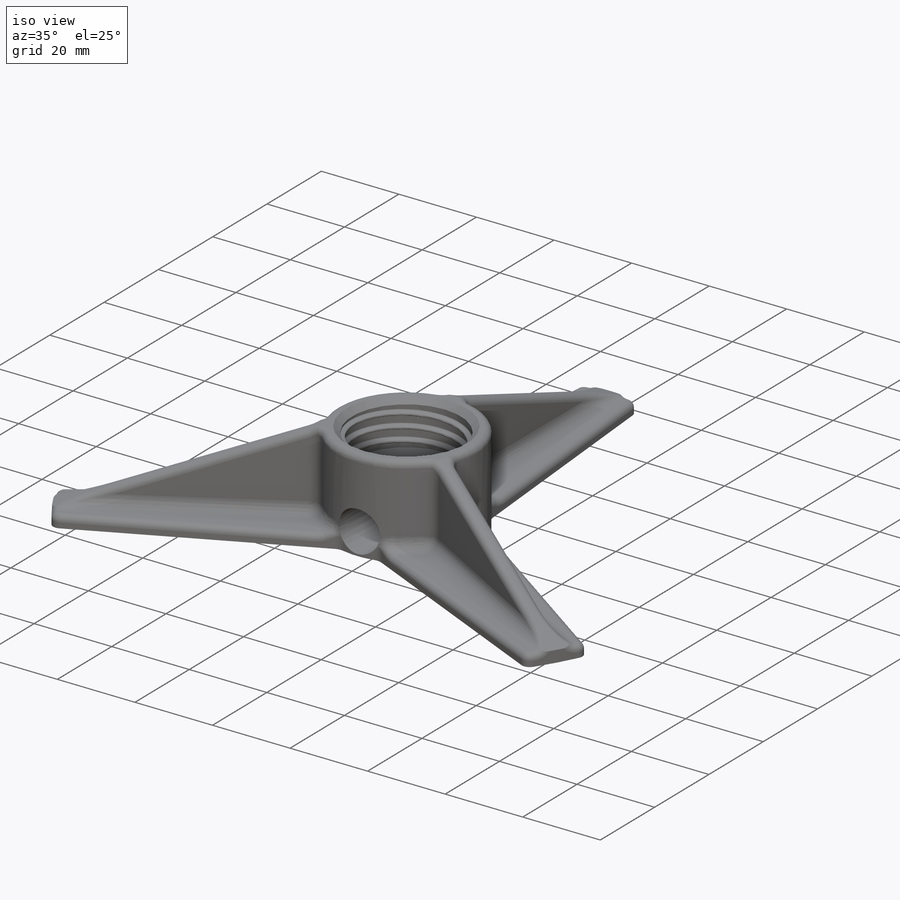
[diagram: iso view]
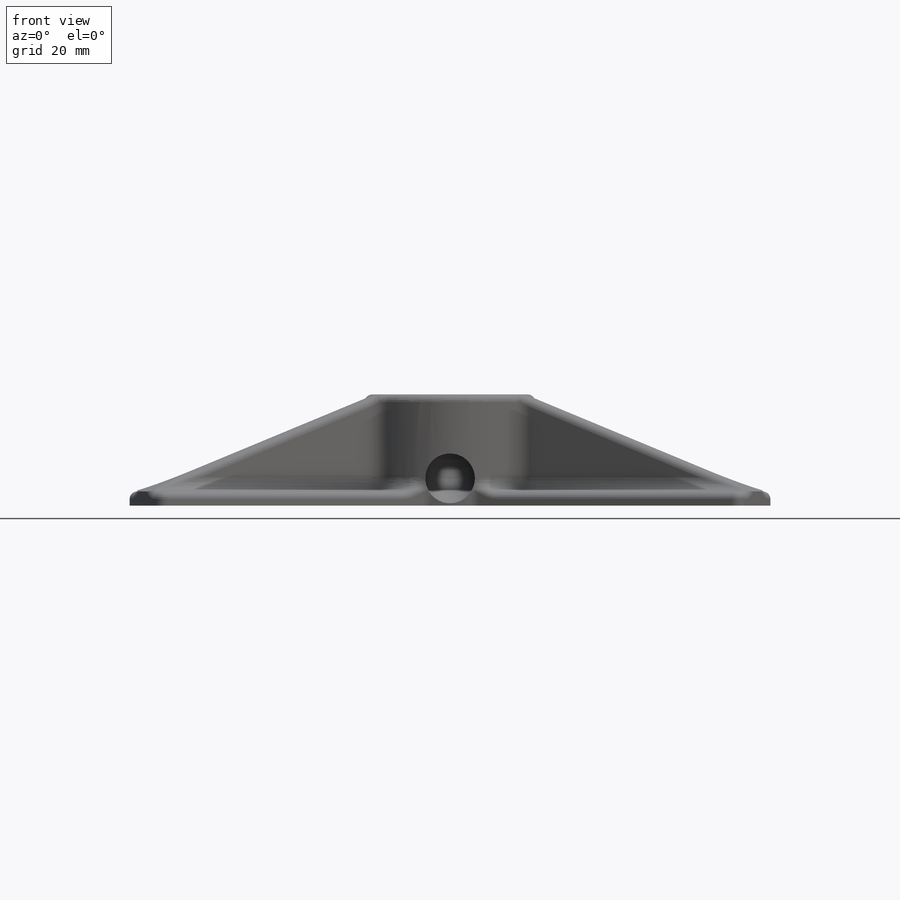
[diagram: front view]
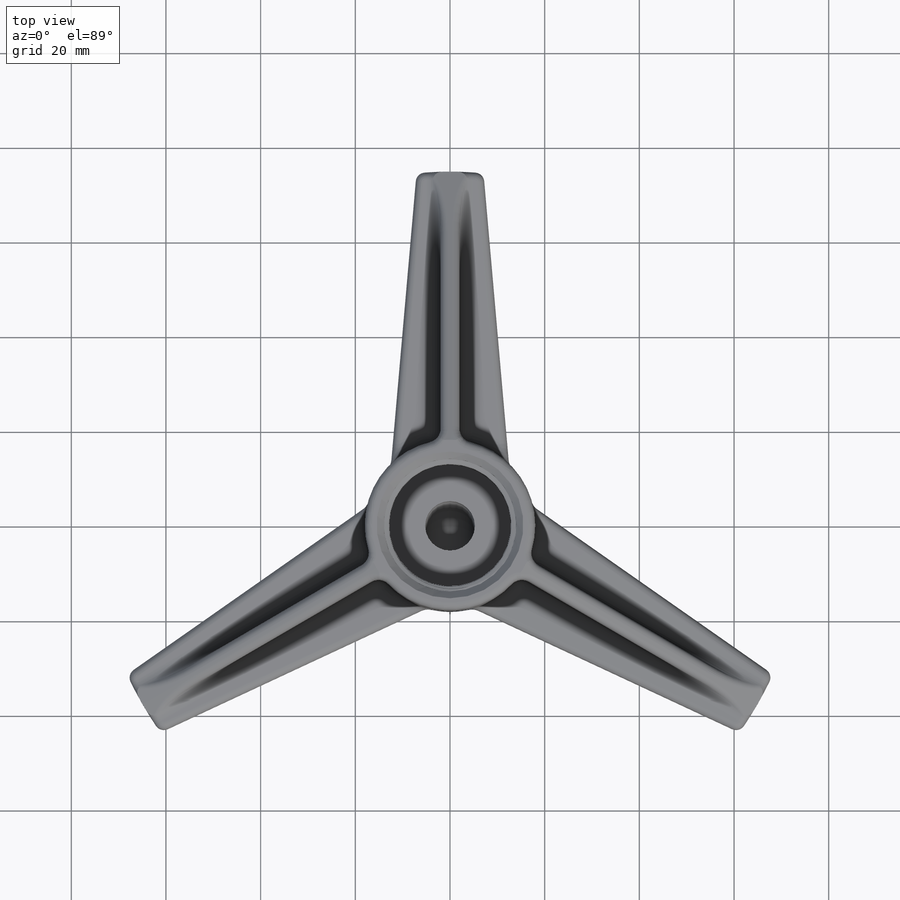
[diagram: top view]
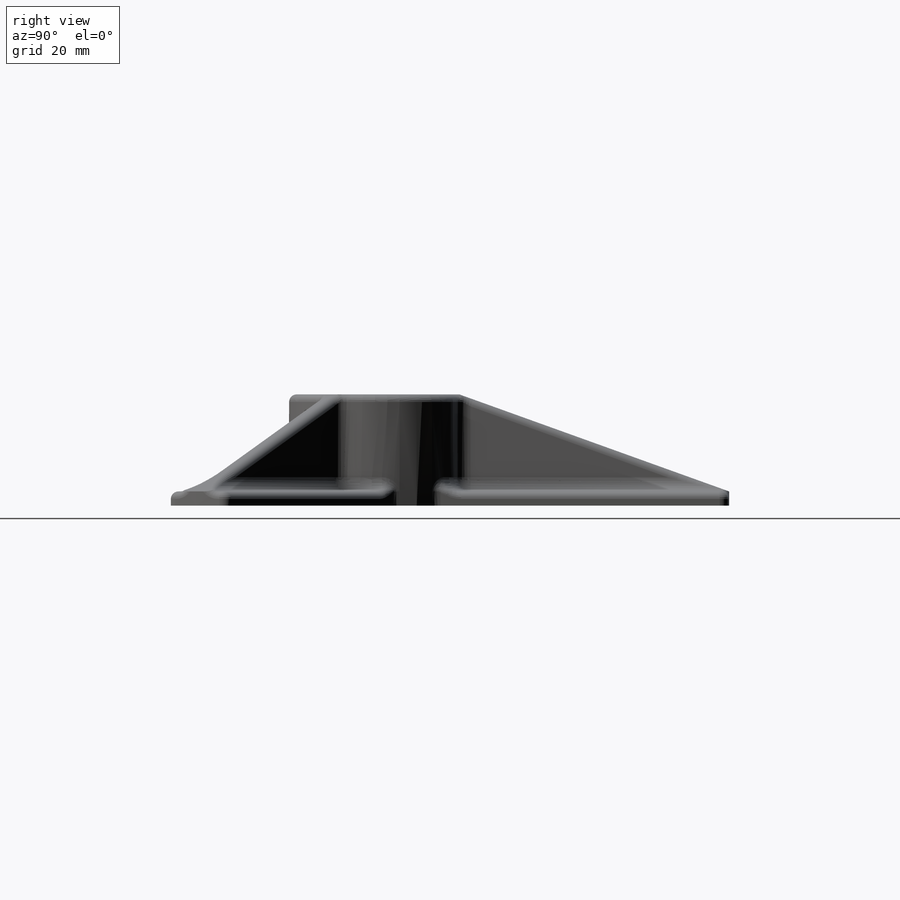
[diagram: right view]
SOLIDWORKS PART (.sldprt)
format: sldprt  version: not decoded by parser v0  size: 1,077,248 bytes
history: native  units: mm
features: sketch x11, fillet x6, plane x3, cut_extrude x3, sweep x2, cut_revolve x2, material x1, revolve x1, helix x1, pattern_circular x1 (+8 scaffold rows collapsed)
feature tree (39):
  scaffold x8  (default folders/planes/origin — collapsed)
  material  "Materiál <není určen>"
  plane  "Přední rovina"
  plane  "Horní rovina"
  plane  "Pravá rovina"
  sketch  "Skica1"  dims[c1.D1=10.0mm c1.D2=28.0mm c1.D3=~70.623477mm c2.D3=45.0deg c2.D4=30.0mm c2.D5=9.5mm c2.D6=4.0mm c2.D7=1.0mm c2.D8=22.0mm c2.D9=2.0mm c2.D10=2.0mm c3.D10=45.0deg c3.D11=~24.760982mm c3.D1=12.0mm c3.D4=1.5mm c4.D1=10.0mm]
  revolve  "Rotovat1"  Angle=360deg
  sketch  "Skica2"  dims[c1.D1=7.9mm c1.D2=25.8mm c1.D3=0.8mm c1.D4=1.3mm c2.D1=1.1mm c3.D1=70.0deg]
  sketch  "Skica3"
  helix  "Šroubovice/spirála1"  Pitch=9.54mm
  sweep  "Táhnout po křivce1"
  sketch  "Skica13"
  cut_revolve  "Odebrat rotací1"  Angle=360deg
  sketch  "Skica14"  dims[D1=10.0mm]
  cut_extrude  "Odebrat vysunutím3"  [1 undecoded]
  fillet  "Zaoblit5"  Radius=0.2mm
  fillet  "Zaoblit7"  Radius=0.2mm
  sketch  "Skica4"  dims[D1=150.0mm D2=12.0mm D3=3.0mm]
  cut_revolve  "Rotovat2"  Angle=360deg
  sketch  "Skica5"  dims[c1.D1=120.0mm c1.D2=~169.705627mm c2.D2=2.0deg c2.D3=10.0mm c3.D2=~20.24471mm c3.D4=5.0mm c3.D1=10.0mm c4.D2=~62.358008mm c5.D2=5.0deg]
  cut_extrude  "Odebrat vysunutím1"  [1 undecoded]
  sketch  "Skica8"  dims[D1=4.0mm D2=4.0mm]
  cut_extrude  "Odebrat vysunutím2"  Depth=3mm
  fillet  "Zaoblit2"  Radius=3mm
  fillet  "Zaoblit1"  Radius=2mm
  sketch  "Skica10"
  fillet  "Zaoblit3"  Radius=1.6mm
  fillet  "Zaoblit4"  Radius=1mm
  pattern_circular  "Kruhové pole1"  Count=3 Angle=360deg
  sketch  "Skica11"  dims[c1.D1=15.0mm c1.D2=15.0mm c1.D3=30.0mm c2.D1=12.0mm c2.D2=0.5mm c3.D1=1.0mm c3.D4=10.5mm]
  sketch  "Skica12"
  sweep  "Odebrat tažením po křivce1"
decode coverage: 19 of 27 modeling features carry decoded parameters
note: ~ marks probable driven/reference dimensions
note: 2 parameter values undecoded
note: suppression state not decoded; provenance and decode notes live in map.json
